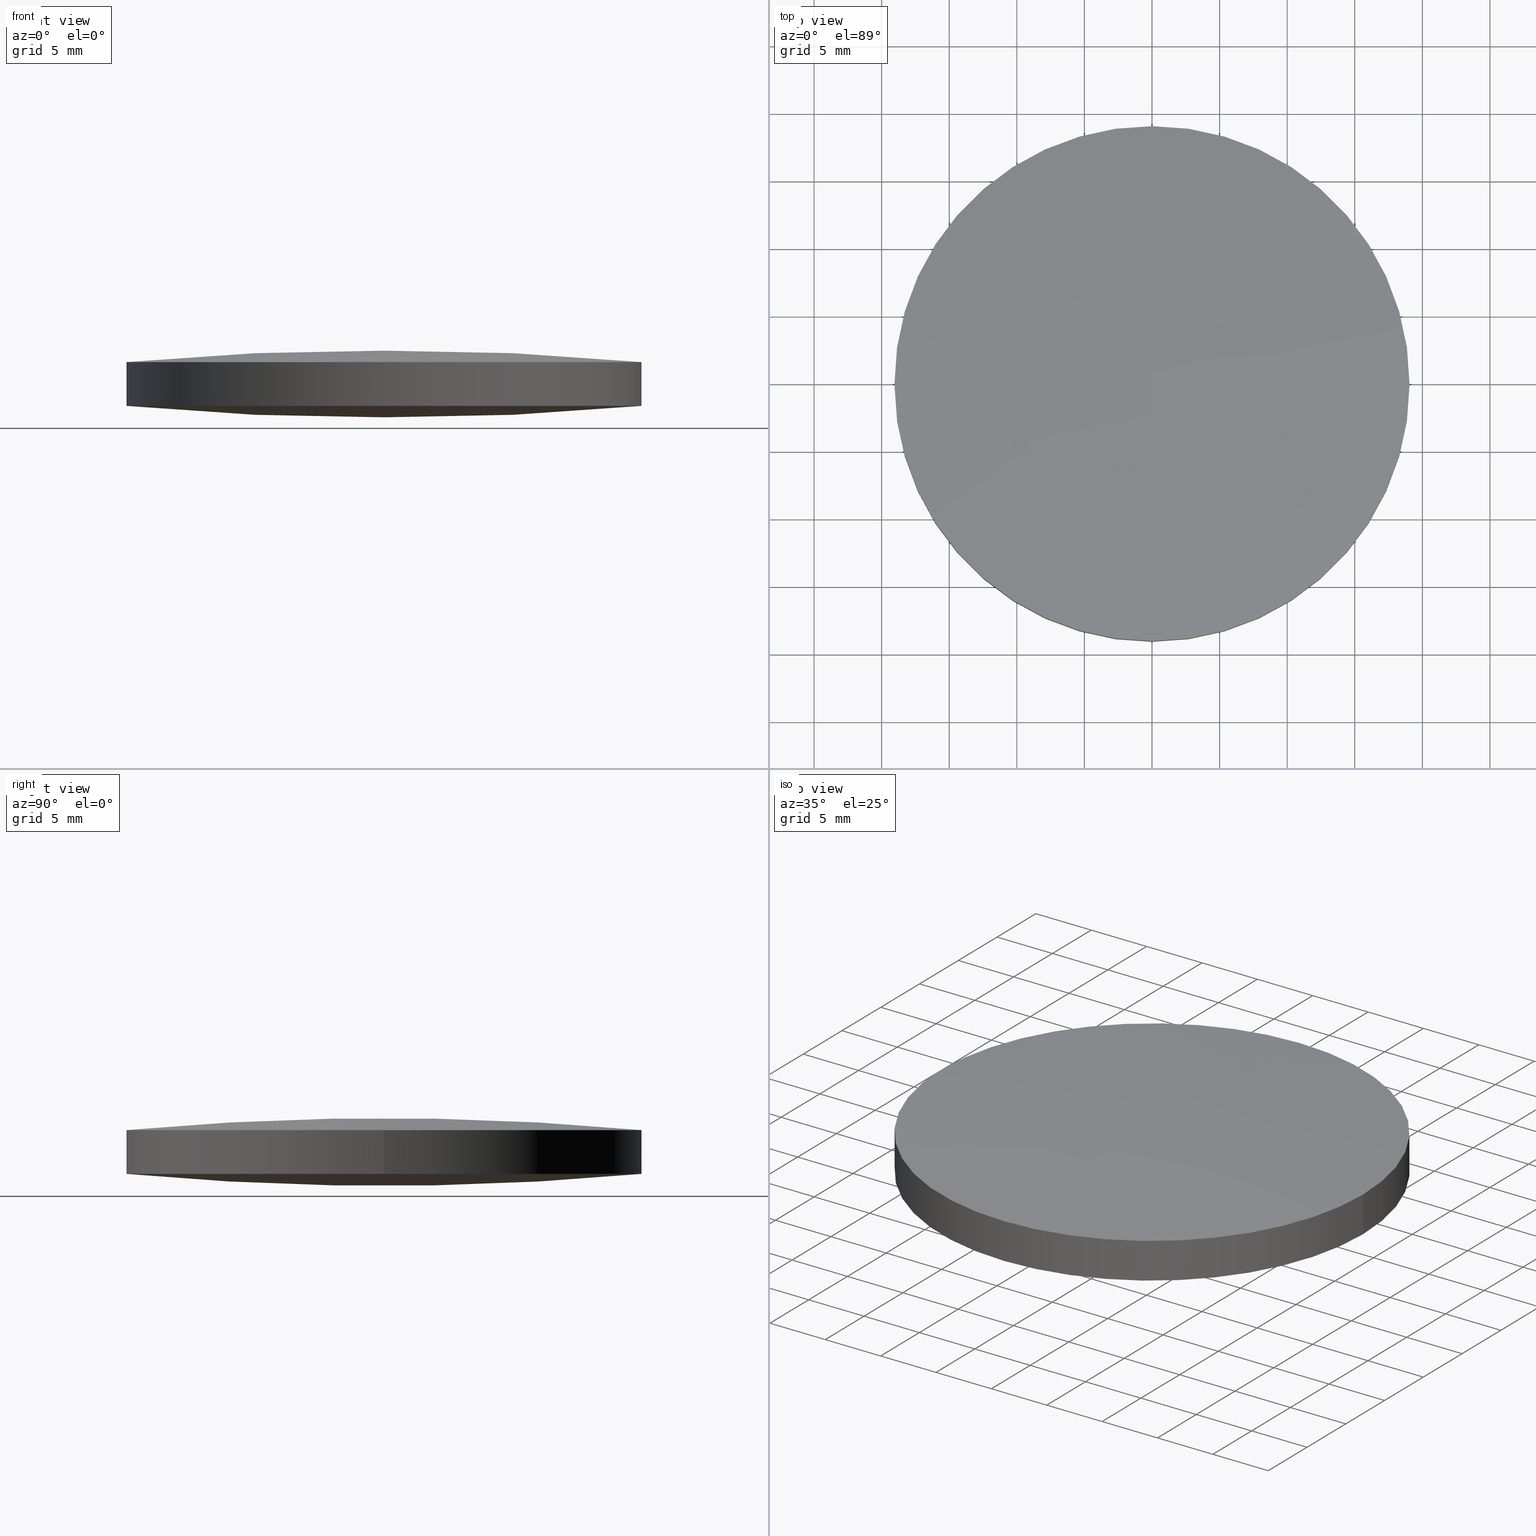
[diagram: canonical four-view strip — front | top / right | iso, engineering-drawing reading convention]
A machine part, canonical four-view strip (front | top / right | iso — engineering-drawing reading convention). The complete STEP part file that produces these views, byte-faithful:
ISO-10303-21;
HEADER;
FILE_DESCRIPTION (( 'STEP AP203' ),
    '1' );
FILE_NAME ('111-0418E BK7 bi-cx 38.1 F200.STEP',
    '2019-01-10T10:47:55',
    ( '' ),
    ( '' ),
    'SwSTEP 2.0',
    'SolidWorks 2017',
    '' );
FILE_SCHEMA (( 'CONFIG_CONTROL_DESIGN' ));
ENDSEC;

DATA;
#1 = APPROVAL_DATE_TIME ( #285, #61 ) ;
#2 = CARTESIAN_POINT ( 'NONE',  ( 19.08036082284170100, 19.27793817985587000, 3.211769511431705700 ) ) ;
#3 = EDGE_CURVE ( 'NONE', #249, #177, #100, .T. ) ;
#4 = APPLICATION_CONTEXT ( 'configuration controlled 3d designs of mechanical parts and assemblies' ) ;
#5 = APPLICATION_PROTOCOL_DEFINITION ( 'international standard', 'config_control_design', 1994, #4 ) ;
#6 = CARTESIAN_POINT ( 'NONE',  ( -12.73626367471861600, -19.27793817985586200, 1.197211413003954200 ) ) ;
#7 = ORIENTED_EDGE ( 'NONE', *, *, #163, .T. ) ;
#8 = PRODUCT_RELATED_PRODUCT_CATEGORY ( 'detail', '', ( #144 ) ) ;
#9 = DIRECTION ( 'NONE',  ( 1.000000000000000000, 0.0000000000000000000, 0.0000000000000000000 ) ) ;
#10 = CARTESIAN_POINT ( 'NONE',  ( 12.81073263667017400, 6.444724679720206200, -0.003779147387872393600 ) ) ;
#11 = PERSON_AND_ORGANIZATION ( #173, #134 ) ;
#12 = CARTESIAN_POINT ( 'NONE',  ( 1.422473250300982100E-013, 6.444724679720232000, -0.3013374258179613000 ) ) ;
#13 = CARTESIAN_POINT ( 'NONE',  ( -19.19192373488753800, -6.444724679720267500, 0.5906956180220642700 ) ) ;
#14 = FACE_OUTER_BOUND ( 'NONE', #15, .T. ) ;
#15 = EDGE_LOOP ( 'NONE', ( #51, #195, #123 ) ) ;
#16 = VERTEX_POINT ( 'NONE', #148 ) ;
#17 = EDGE_CURVE ( 'NONE', #219, #133, #161, .T. ) ;
#18 =( BOUNDED_SURFACE ( )  B_SPLINE_SURFACE ( 3, 3, ( 
 ( #174, #6, #205, #259 ),
 ( #13, #261, #287, #131 ),
 ( #207, #229, #184, #12 ),
 ( #159, #132, #155, #67 ) ),
 .UNSPECIFIED., .F., .F., .T. ) 
 B_SPLINE_SURFACE_WITH_KNOTS ( ( 4, 4 ),
 ( 4, 4 ),
 ( 0.0000000000000000000, 1.000000000000000000 ),
 ( 0.0000000000000000000, 1.000000000000000000 ),
 .UNSPECIFIED. ) 
 GEOMETRIC_REPRESENTATION_ITEM ( )  RATIONAL_B_SPLINE_SURFACE ( (
 ( 1.000000000000000000, 0.9992810467765541600, 0.9992810467765541600, 1.000000000000000000),
 ( 0.9970913751375676300, 0.9963745130793424400, 0.9963745130793424400, 0.9970913751375676300),
 ( 0.9970913751375676300, 0.9963745130793424400, 0.9963745130793424400, 0.9970913751375676300),
 ( 1.000000000000000000, 0.9992810467765541600, 0.9992810467765541600, 1.000000000000000000) ) ) 
 REPRESENTATION_ITEM ( '' )  SURFACE ( )  );
#19 = CYLINDRICAL_SURFACE ( 'NONE', #73, 19.05000000000000100 ) ;
#20 = FACE_OUTER_BOUND ( 'NONE', #46, .T. ) ;
#21 = DIRECTION ( 'NONE',  ( 5.827942386483759700E-018, 2.717192996813919900E-034, 1.000000000000000000 ) ) ;
#22 = CARTESIAN_POINT ( 'NONE',  ( -6.408822050789117600, -6.444724679720301300, 5.301337425817966000 ) ) ;
#23 = PERSON_AND_ORGANIZATION ( #173, #134 ) ;
#24 = FACE_OUTER_BOUND ( 'NONE', #257, .T. ) ;
#25 = ADVANCED_FACE ( 'NONE', ( #14 ), #118, .T. ) ;
#26 = DIRECTION ( 'NONE',  ( 1.000000000000000000, 0.0000000000000000000, -5.691349986800548400E-018 ) ) ;
#27 = CARTESIAN_POINT ( 'NONE',  ( -1.353084311261909500E-013, 19.27793817985587300, 4.098617155132239500 ) ) ;
#28 = CARTESIAN_POINT ( 'NONE',  ( -19.19192373488759900, 6.444724679720241800, 4.409304381977994700 ) ) ;
#29 = CARTESIAN_POINT ( 'NONE',  ( 1.991749316508425300E-013, -19.27793817985585900, 0.9013828448677652100 ) ) ;
#30 = CARTESIAN_POINT ( 'NONE',  ( 6.371567481593944000, 19.27793817985578800, 0.9013828448677687600 ) ) ;
#31 = DIRECTION ( 'NONE',  ( 1.000000000000000000, -8.881784197001252300E-016, -5.691349986800548400E-018 ) ) ;
#32 = SECURITY_CLASSIFICATION_LEVEL ( 'unclassified' ) ;
#33 = ORIENTED_EDGE ( 'NONE', *, *, #17, .F. ) ;
#34 = VERTEX_POINT ( 'NONE', #128 ) ;
#35 = DIRECTION ( 'NONE',  ( -5.827942386483759700E-018, -2.717192996813919900E-034, -1.000000000000000000 ) ) ;
#36 = CC_DESIGN_APPROVAL ( #61, ( #117 ) ) ;
#37 = CARTESIAN_POINT ( 'NONE',  ( -8.526512829121199700E-014, -5.684341886080800200E-014, -201.5999999999999900 ) ) ;
#38 = CARTESIAN_POINT ( 'NONE',  ( 1.884043759237314700E-013, 19.04999999999994700, 0.8801480167750022100 ) ) ;
#39 = ORIENTED_EDGE ( 'NONE', *, *, #215, .F. ) ;
#40 = CARTESIAN_POINT ( 'NONE',  ( 6.371567481593705100, -19.27793817985600100, 4.098617155132211900 ) ) ;
#41 = EDGE_CURVE ( 'NONE', #237, #16, #110, .T. ) ;
#42 = DATE_AND_TIME ( #72, #107 ) ;
#43 = CARTESIAN_POINT ( 'NONE',  ( -4.644055895359926400E-015, -8.881784197001250400E-016, 4.119851983224990000 ) ) ;
#44 = DESIGN_CONTEXT ( 'detailed design', #4, 'design' ) ;
#45 = APPROVAL_ROLE ( '' ) ;
#46 = EDGE_LOOP ( 'NONE', ( #80, #182, #271, #152, #262, #143 ) ) ;
#47 = CARTESIAN_POINT ( 'NONE',  ( 12.73626367471876700, 19.27793817985578800, 1.197211413003924200 ) ) ;
#48 = DATE_TIME_ROLE ( 'classification_date' ) ;
#49 = PERSON_AND_ORGANIZATION ( #173, #134 ) ;
#50 = CARTESIAN_POINT ( 'NONE',  ( -4.644055895359926400E-015, -8.881784197001250400E-016, 4.119851983224990000 ) ) ;
#51 = ORIENTED_EDGE ( 'NONE', *, *, #191, .T. ) ;
#52 = PERSON_AND_ORGANIZATION ( #173, #134 ) ;
#53 = FACE_OUTER_BOUND ( 'NONE', #241, .T. ) ;
#54 = CARTESIAN_POINT ( 'NONE',  ( 19.19192373488754900, 6.444724679720213300, 4.409304381977981400 ) ) ;
#55 = CARTESIAN_POINT ( 'NONE',  ( -12.73626367471877100, 19.27793817985588000, 3.802788586996080700 ) ) ;
#56 = CARTESIAN_POINT ( 'NONE',  ( 19.19192373488754200, -6.444724679720344800, 4.409304381977953800 ) ) ;
#57 = ORIENTED_EDGE ( 'NONE', *, *, #41, .T. ) ;
#58 = CARTESIAN_POINT ( 'NONE',  ( 6.408822050788878700, 6.444724679720217800, 5.301337425818004200 ) ) ;
#59 = ADVANCED_FACE ( 'NONE', ( #216 ), #18, .T. ) ;
#60 = DIRECTION ( 'NONE',  ( -5.827942386483759700E-018, -2.717192996813919900E-034, -1.000000000000000000 ) ) ;
#61 = APPROVAL ( #250, 'UNSPECIFIED' ) ;
#62 = PERSON_AND_ORGANIZATION_ROLE ( 'creator' ) ;
#63 = PERSON_AND_ORGANIZATION_ROLE ( 'creator' ) ;
#64 = CARTESIAN_POINT ( 'NONE',  ( 19.08036082284174000, 19.27793817985578800, 1.788230488568283800 ) ) ;
#65 = APPROVAL_PERSON_ORGANIZATION ( #194, #61, #178 ) ;
#66 = CC_DESIGN_PERSON_AND_ORGANIZATION_ASSIGNMENT ( #52, #62, ( #117 ) ) ;
#67 = CARTESIAN_POINT ( 'NONE',  ( 1.353084311261909500E-013, 19.27793817985582700, 0.9013828448677929700 ) ) ;
#68 = EDGE_CURVE ( 'NONE', #133, #237, #146, .T. ) ;
#69 = ORIENTED_EDGE ( 'NONE', *, *, #41, .F. ) ;
#70 = UNCERTAINTY_MEASURE_WITH_UNIT (LENGTH_MEASURE( 1.000000000000000100E-005 ), #85, 'distance_accuracy_value', 'NONE');
#71 = ADVANCED_BREP_SHAPE_REPRESENTATION ( '111-0418E BK7 bi-cx 38.1 F200', ( #176, #164 ), #179 ) ;
#72 = CALENDAR_DATE ( 2019, 10, 1 ) ;
#73 = AXIS2_PLACEMENT_3D ( 'NONE', #90, #116, #92 ) ;
#74 = CARTESIAN_POINT ( 'NONE',  ( -19.05000000000000400, 1.444773732675583000E-015, 0.8801480167750090900 ) ) ;
#75 = DIRECTION ( 'NONE',  ( -5.827942386483759700E-018, -2.717192996813919900E-034, -1.000000000000000000 ) ) ;
#76 = ORIENTED_EDGE ( 'NONE', *, *, #91, .T. ) ;
#77 = CARTESIAN_POINT ( 'NONE',  ( 12.81073263667003000, -6.444724679720340400, 5.003779147387859900 ) ) ;
#78 = CARTESIAN_POINT ( 'NONE',  ( 6.371567481593719300, 19.27793817985587000, 4.098617155132241200 ) ) ;
#79 = CALENDAR_DATE ( 2019, 10, 1 ) ;
#80 = ORIENTED_EDGE ( 'NONE', *, *, #91, .F. ) ;
#81 = EDGE_CURVE ( 'NONE', #16, #219, #235, .T. ) ;
#82 = APPROVAL_STATUS ( 'not_yet_approved' ) ;
#83 = CARTESIAN_POINT ( 'NONE',  ( 6.371567481593955600, -19.27793817985585500, 0.9013828448677687600 ) ) ;
#84 = VECTOR ( 'NONE', #264, 1000.000000000000000 ) ;
#85 =( LENGTH_UNIT ( ) NAMED_UNIT ( * ) SI_UNIT ( .MILLI., .METRE. ) );
#86 = CARTESIAN_POINT ( 'NONE',  ( -4.644055895359926400E-015, -8.881784197001250400E-016, 4.119851983224990000 ) ) ;
#87 = CC_DESIGN_DATE_AND_TIME_ASSIGNMENT ( #42, #48, ( #252 ) ) ;
#88 = CIRCLE ( 'NONE', #204, 206.5999999999999900 ) ;
#89 = ORIENTED_EDGE ( 'NONE', *, *, #191, .F. ) ;
#90 = CARTESIAN_POINT ( 'NONE',  ( -4.662936703425659800E-015, -8.881784197001250400E-016, 0.8801480167750089800 ) ) ;
#91 = EDGE_CURVE ( 'NONE', #103, #249, #289, .T. ) ;
#92 = DIRECTION ( 'NONE',  ( 1.000000000000000000, 0.0000000000000000000, -5.691349986800548400E-018 ) ) ;
#93 = DIRECTION ( 'NONE',  ( 1.000000000000000000, 0.0000000000000000000, -5.691349986800548400E-018 ) ) ;
#94 = VECTOR ( 'NONE', #115, 1000.000000000000000 ) ;
#95 = ORIENTED_EDGE ( 'NONE', *, *, #170, .F. ) ;
#96 = CARTESIAN_POINT ( 'NONE',  ( -1.991220114042385400E-013, -19.05000000000009300, 4.119851983224985600 ) ) ;
#97 = CARTESIAN_POINT ( 'NONE',  ( -12.73626367471878000, -19.27793817985594100, 3.802788586996052700 ) ) ;
#98 = LOCAL_TIME ( 12, 47, 55.00000000000000000, #209 ) ;
#99 = PERSON_AND_ORGANIZATION ( #173, #134 ) ;
#100 = CIRCLE ( 'NONE', #109, 19.05000000000000100 ) ;
#101 = DIRECTION ( 'NONE',  ( 1.000000000000000000, 0.0000000000000000000, 0.0000000000000000000 ) ) ;
#102 = CALENDAR_DATE ( 2019, 10, 1 ) ;
#103 = VERTEX_POINT ( 'NONE', #106 ) ;
#104 = DATE_TIME_ROLE ( 'creation_date' ) ;
#105 = CARTESIAN_POINT ( 'NONE',  ( 6.408822050789112300, 6.444724679720204500, -0.3013374258179815100 ) ) ;
#106 = CARTESIAN_POINT ( 'NONE',  ( -19.05000000000000400, 1.444773732675583000E-015, 0.8801480167750092000 ) ) ;
#107 = LOCAL_TIME ( 12, 47, 55.00000000000000000, #226 ) ;
#108 = PERSON_AND_ORGANIZATION ( #173, #134 ) ;
#109 = AXIS2_PLACEMENT_3D ( 'NONE', #202, #276, #31 ) ;
#110 = CIRCLE ( 'NONE', #135, 19.05000000000000100 ) ;
#111 = ORIENTED_EDGE ( 'NONE', *, *, #139, .T. ) ;
#112 = COORDINATED_UNIVERSAL_TIME_OFFSET ( 2, 0, .AHEAD. ) ;
#113 = DIRECTION ( 'NONE',  ( -1.000000000000000000, 2.813027685172509800E-016, -5.274068804094810300E-016 ) ) ;
#114 = EDGE_CURVE ( 'NONE', #34, #249, #88, .T. ) ;
#115 = DIRECTION ( 'NONE',  ( 5.827942386483759700E-018, 2.717192996813919900E-034, 1.000000000000000000 ) ) ;
#116 = DIRECTION ( 'NONE',  ( 5.827942386483759700E-018, 2.717192996813919900E-034, 1.000000000000000000 ) ) ;
#117 = PRODUCT_DEFINITION ( 'UNKNOWN', '', #208, #44 ) ;
#118 =( BOUNDED_SURFACE ( )  B_SPLINE_SURFACE ( 3, 3, ( 
 ( #29, #83, #251, #280 ),
 ( #199, #255, #253, #130 ),
 ( #203, #105, #10, #153 ),
 ( #278, #30, #47, #64 ) ),
 .UNSPECIFIED., .F., .F., .T. ) 
 B_SPLINE_SURFACE_WITH_KNOTS ( ( 4, 4 ),
 ( 4, 4 ),
 ( 0.0000000000000000000, 1.000000000000000000 ),
 ( 0.0000000000000000000, 1.000000000000000000 ),
 .UNSPECIFIED. ) 
 GEOMETRIC_REPRESENTATION_ITEM ( )  RATIONAL_B_SPLINE_SURFACE ( (
 ( 1.000000000000000000, 0.9992810467765543800, 0.9992810467765543800, 1.000000000000000000),
 ( 0.9970913751375676300, 0.9963745130793426600, 0.9963745130793426600, 0.9970913751375676300),
 ( 0.9970913751375676300, 0.9963745130793426600, 0.9963745130793426600, 0.9970913751375676300),
 ( 1.000000000000000000, 0.9992810467765543800, 0.9992810467765543800, 1.000000000000000000) ) ) 
 REPRESENTATION_ITEM ( '' )  SURFACE ( )  );
#119 = CARTESIAN_POINT ( 'NONE',  ( -1.884043759237312400E-013, 19.05000000000004000, 4.119851983224985600 ) ) ;
#120 = CARTESIAN_POINT ( 'NONE',  ( -1.883290568882465600E-013, 19.27793817985587700, 4.098617155132239500 ) ) ;
#121 = CARTESIAN_POINT ( 'NONE',  ( -19.08036082284174700, 19.27793817985588000, 3.211769511431720400 ) ) ;
#122 = CIRCLE ( 'NONE', #158, 19.05000000000000100 ) ;
#123 = ORIENTED_EDGE ( 'NONE', *, *, #3, .T. ) ;
#124 = CARTESIAN_POINT ( 'NONE',  ( 19.08036082284168700, -19.27793817985600100, 3.211769511431677800 ) ) ;
#125 = CARTESIAN_POINT ( 'NONE',  ( -12.81073263667017800, -6.444724679720299500, 5.003779147387857200 ) ) ;
#126 = SHAPE_DEFINITION_REPRESENTATION ( #214, #71 ) ;
#127 =( NAMED_UNIT ( * ) PLANE_ANGLE_UNIT ( ) SI_UNIT ( $, .RADIAN. ) );
#128 = CARTESIAN_POINT ( 'NONE',  ( 1.991220114042387200E-013, -19.05000000000000400, 0.8801480167750022100 ) ) ;
#129 =( NAMED_UNIT ( * ) SI_UNIT ( $, .STERADIAN. ) SOLID_ANGLE_UNIT ( ) );
#130 = CARTESIAN_POINT ( 'NONE',  ( 19.19192373488759500, -6.444724679720271100, 0.5906956180220230800 ) ) ;
#131 = CARTESIAN_POINT ( 'NONE',  ( 1.491862189340054100E-013, -6.444724679720261300, -0.3013374258179558100 ) ) ;
#132 = CARTESIAN_POINT ( 'NONE',  ( -12.73626367471863000, 19.27793817985582700, 1.197211413003954000 ) ) ;
#133 = VERTEX_POINT ( 'NONE', #275 ) ;
#134 = ORGANIZATION ( 'UNSPECIFIED', 'UNSPECIFIED', '' ) ;
#135 = AXIS2_PLACEMENT_3D ( 'NONE', #43, #150, #233 ) ;
#136 = CARTESIAN_POINT ( 'NONE',  ( 19.04999999999999700, -8.881784197001250400E-016, 0.8801480167750088700 ) ) ;
#137 = APPROVAL_PERSON_ORGANIZATION ( #99, #283, #277 ) ;
#138 = EDGE_LOOP ( 'NONE', ( #246, #188, #76 ) ) ;
#139 = EDGE_CURVE ( 'NONE', #177, #133, #141, .T. ) ;
#140 = DIRECTION ( 'NONE',  ( 1.000000000000000000, 0.0000000000000000000, -5.691349986800548400E-018 ) ) ;
#141 = LINE ( 'NONE', #136, #94 ) ;
#142 = CARTESIAN_POINT ( 'NONE',  ( 12.73626367471862900, 19.27793817985587300, 3.802788586996078000 ) ) ;
#143 = ORIENTED_EDGE ( 'NONE', *, *, #3, .F. ) ;
#144 = PRODUCT ( '111-0418E BK7 bi-cx 38.1 F200', '111-0418E BK7 bi-cx 38.1 F200', '', ( #225 ) ) ;
#145 = CARTESIAN_POINT ( 'NONE',  ( 6.408822050788870700, -6.444724679720337700, 5.301337425817975700 ) ) ;
#146 = CIRCLE ( 'NONE', #187, 19.05000000000000100 ) ;
#147 = CARTESIAN_POINT ( 'NONE',  ( -12.81073263667017800, 6.444724679720237300, 5.003779147387888300 ) ) ;
#148 = CARTESIAN_POINT ( 'NONE',  ( -19.05000000000000400, 1.444773732675583000E-015, 4.119851983224990000 ) ) ;
#149 = PERSON_AND_ORGANIZATION_ROLE ( 'classification_officer' ) ;
#150 = DIRECTION ( 'NONE',  ( -5.827942386483759700E-018, -2.717192996813919900E-034, -1.000000000000000000 ) ) ;
#151 = CIRCLE ( 'NONE', #221, 206.5999999999999900 ) ;
#152 = ORIENTED_EDGE ( 'NONE', *, *, #17, .T. ) ;
#153 = CARTESIAN_POINT ( 'NONE',  ( 19.19192373488759200, 6.444724679720208900, 0.5906956180220207500 ) ) ;
#154 = DIRECTION ( 'NONE',  ( 0.0000000000000000000, 0.0000000000000000000, 1.000000000000000000 ) ) ;
#155 = CARTESIAN_POINT ( 'NONE',  ( -6.371567481593718400, 19.27793817985582300, 0.9013828448677914100 ) ) ;
#156 = AXIS2_PLACEMENT_3D ( 'NONE', #248, #60, #101 ) ;
#157 = DATE_AND_TIME ( #102, #224 ) ;
#158 = AXIS2_PLACEMENT_3D ( 'NONE', #223, #197, #26 ) ;
#159 = CARTESIAN_POINT ( 'NONE',  ( -19.08036082284170100, 19.27793817985582300, 1.788230488568326400 ) ) ;
#160 = LOCAL_TIME ( 12, 47, 55.00000000000000000, #231 ) ;
#161 = CIRCLE ( 'NONE', #156, 19.05000000000000100 ) ;
#162 = DIRECTION ( 'NONE',  ( -2.813027685172511800E-016, -1.000000000000000000, 2.686890185443263700E-016 ) ) ;
#163 = EDGE_CURVE ( 'NONE', #237, #219, #151, .T. ) ;
#164 = AXIS2_PLACEMENT_3D ( 'NONE', #254, #154, #9 ) ;
#165 = PERSON_AND_ORGANIZATION ( #173, #134 ) ;
#166 = CLOSED_SHELL ( 'NONE', ( #25, #294, #196, #59, #171, #247 ) ) ;
#167 = DIRECTION ( 'NONE',  ( 1.000000000000000000, 0.0000000000000000000, -5.691349986800548400E-018 ) ) ;
#168 = CARTESIAN_POINT ( 'NONE',  ( -19.19192373488759900, -6.444724679720299500, 4.409304381977964500 ) ) ;
#169 = CARTESIAN_POINT ( 'NONE',  ( -19.08036082284175400, -19.27793817985594100, 3.211769511431692900 ) ) ;
#170 = EDGE_CURVE ( 'NONE', #103, #16, #279, .T. ) ;
#171 = ADVANCED_FACE ( 'NONE', ( #240 ), #19, .T. ) ;
#172 = CARTESIAN_POINT ( 'NONE',  ( -1.491862189340054100E-013, -19.27793817985599700, 4.098617155132211000 ) ) ;
#173 = PERSON ( 'UNSPECIFIED', 'UNSPECIFIED', 'UNSPECIFIED', ('UNSPECIFIED'), ('UNSPECIFIED'), ('UNSPECIFIED') ) ;
#174 = CARTESIAN_POINT ( 'NONE',  ( -19.08036082284168700, -19.27793817985586600, 1.788230488568326400 ) ) ;
#175 = CYLINDRICAL_SURFACE ( 'NONE', #239, 19.05000000000000100 ) ;
#176 = MANIFOLD_SOLID_BREP ( 'Imported1', #166 ) ;
#177 = VERTEX_POINT ( 'NONE', #266 ) ;
#178 = APPROVAL_ROLE ( '' ) ;
#179 =( GEOMETRIC_REPRESENTATION_CONTEXT ( 3 ) GLOBAL_UNCERTAINTY_ASSIGNED_CONTEXT ( ( #70 ) ) GLOBAL_UNIT_ASSIGNED_CONTEXT ( ( #85, #127, #129 ) ) REPRESENTATION_CONTEXT ( 'NONE', 'WORKASPACE' ) );
#180 = APPLICATION_CONTEXT ( 'configuration controlled 3d designs of mechanical parts and assemblies' ) ;
#181 = DATE_AND_TIME ( #79, #160 ) ;
#182 = ORIENTED_EDGE ( 'NONE', *, *, #170, .T. ) ;
#183 = CC_DESIGN_APPROVAL ( #283, ( #208 ) ) ;
#184 = CARTESIAN_POINT ( 'NONE',  ( -6.408822050788873300, 6.444724679720230200, -0.3013374258179630800 ) ) ;
#185 = LOCAL_TIME ( 12, 47, 55.00000000000000000, #206 ) ;
#186 = CIRCLE ( 'NONE', #238, 19.05000000000000100 ) ;
#187 = AXIS2_PLACEMENT_3D ( 'NONE', #50, #35, #189 ) ;
#188 = ORIENTED_EDGE ( 'NONE', *, *, #215, .T. ) ;
#189 = DIRECTION ( 'NONE',  ( 1.000000000000000000, 0.0000000000000000000, 0.0000000000000000000 ) ) ;
#190 = CARTESIAN_POINT ( 'NONE',  ( -4.662936703425659800E-015, -8.881784197001250400E-016, 0.8801480167750090900 ) ) ;
#191 = EDGE_CURVE ( 'NONE', #177, #34, #186, .T. ) ;
#192 = DIRECTION ( 'NONE',  ( 1.000000000000000000, 2.813027685172509800E-016, 5.274068804094820100E-016 ) ) ;
#193 = CARTESIAN_POINT ( 'NONE',  ( -6.408822050789115800, 6.444724679720235500, 5.301337425817996200 ) ) ;
#194 = PERSON_AND_ORGANIZATION ( #173, #134 ) ;
#195 = ORIENTED_EDGE ( 'NONE', *, *, #114, .T. ) ;
#196 = ADVANCED_FACE ( 'NONE', ( #20 ), #175, .T. ) ;
#197 = DIRECTION ( 'NONE',  ( -5.827942386483759700E-018, -2.717192996813919900E-034, -1.000000000000000000 ) ) ;
#198 = PERSON_AND_ORGANIZATION_ROLE ( 'design_supplier' ) ;
#199 = CARTESIAN_POINT ( 'NONE',  ( 1.961992361102490800E-013, -6.444724679720276400, -0.3013374258179825600 ) ) ;
#200 = EDGE_LOOP ( 'NONE', ( #95, #39, #89, #111, #265, #57 ) ) ;
#201 = CC_DESIGN_PERSON_AND_ORGANIZATION_ASSIGNMENT ( #11, #63, ( #208 ) ) ;
#202 = CARTESIAN_POINT ( 'NONE',  ( -4.662936703425659800E-015, -8.881784197001250400E-016, 0.8801480167750090900 ) ) ;
#203 = CARTESIAN_POINT ( 'NONE',  ( 1.925733983207755500E-013, 6.444724679720203600, -0.3013374258179849500 ) ) ;
#204 = AXIS2_PLACEMENT_3D ( 'NONE', #217, #192, #212 ) ;
#205 = CARTESIAN_POINT ( 'NONE',  ( -6.371567481593705100, -19.27793817985586200, 0.9013828448677917400 ) ) ;
#206 = COORDINATED_UNIVERSAL_TIME_OFFSET ( 2, 0, .AHEAD. ) ;
#207 = CARTESIAN_POINT ( 'NONE',  ( -19.19192373488754600, 6.444724679720225800, 0.5906956180220592800 ) ) ;
#208 = PRODUCT_DEFINITION_FORMATION_WITH_SPECIFIED_SOURCE ( 'ANY', '', #144, .NOT_KNOWN. ) ;
#209 = COORDINATED_UNIVERSAL_TIME_OFFSET ( 2, 0, .AHEAD. ) ;
#210 = ORIENTED_EDGE ( 'NONE', *, *, #68, .F. ) ;
#211 = CC_DESIGN_PERSON_AND_ORGANIZATION_ASSIGNMENT ( #23, #198, ( #208 ) ) ;
#212 = DIRECTION ( 'NONE',  ( 2.813027685172511800E-016, -1.000000000000000000, -2.686890185443263700E-016 ) ) ;
#213 = DATE_AND_TIME ( #291, #98 ) ;
#214 = PRODUCT_DEFINITION_SHAPE ( 'NONE', 'NONE',  #117 ) ;
#215 = EDGE_CURVE ( 'NONE', #34, #103, #122, .T. ) ;
#216 = FACE_OUTER_BOUND ( 'NONE', #138, .T. ) ;
#217 = CARTESIAN_POINT ( 'NONE',  ( 8.526512829121199700E-014, -5.684341886080800200E-014, 206.5999999999999900 ) ) ;
#218 = CARTESIAN_POINT ( 'NONE',  ( -1.961992361102488300E-013, -6.444724679720304800, 5.301337425817969500 ) ) ;
#219 = VERTEX_POINT ( 'NONE', #119 ) ;
#220 = CARTESIAN_POINT ( 'NONE',  ( -1.457167719820518000E-013, -6.444724679720338600, 5.301337425817973100 ) ) ;
#221 = AXIS2_PLACEMENT_3D ( 'NONE', #37, #113, #162 ) ;
#222 = CARTESIAN_POINT ( 'NONE',  ( -1.387778780781445700E-013, 6.444724679720219600, 5.301337425818002400 ) ) ;
#223 = CARTESIAN_POINT ( 'NONE',  ( -4.662936703425659800E-015, -8.881784197001250400E-016, 0.8801480167750090900 ) ) ;
#224 = LOCAL_TIME ( 12, 47, 55.00000000000000000, #112 ) ;
#225 = MECHANICAL_CONTEXT ( 'NONE', #180, 'mechanical' ) ;
#226 = COORDINATED_UNIVERSAL_TIME_OFFSET ( 2, 0, .AHEAD. ) ;
#227 = ORIENTED_EDGE ( 'NONE', *, *, #81, .F. ) ;
#228 = PERSON_AND_ORGANIZATION_ROLE ( 'design_owner' ) ;
#229 = CARTESIAN_POINT ( 'NONE',  ( -12.81073263667003400, 6.444724679720227600, -0.003779147387846806400 ) ) ;
#230 = CC_DESIGN_DATE_AND_TIME_ASSIGNMENT ( #181, #104, ( #117 ) ) ;
#231 = COORDINATED_UNIVERSAL_TIME_OFFSET ( 2, 0, .AHEAD. ) ;
#232 = AXIS2_PLACEMENT_3D ( 'NONE', #286, #290, #140 ) ;
#233 = DIRECTION ( 'NONE',  ( 1.000000000000000000, 0.0000000000000000000, 0.0000000000000000000 ) ) ;
#234 = APPROVAL_DATE_TIME ( #213, #283 ) ;
#235 = CIRCLE ( 'NONE', #258, 19.05000000000000100 ) ;
#236 = CC_DESIGN_PERSON_AND_ORGANIZATION_ASSIGNMENT ( #49, #149, ( #252 ) ) ;
#237 = VERTEX_POINT ( 'NONE', #96 ) ;
#238 = AXIS2_PLACEMENT_3D ( 'NONE', #190, #75, #93 ) ;
#239 = AXIS2_PLACEMENT_3D ( 'NONE', #269, #21, #167 ) ;
#240 = FACE_OUTER_BOUND ( 'NONE', #200, .T. ) ;
#241 = EDGE_LOOP ( 'NONE', ( #69, #7, #227 ) ) ;
#242 =( BOUNDED_SURFACE ( )  B_SPLINE_SURFACE ( 3, 3, ( 
 ( #124, #295, #40, #172 ),
 ( #56, #77, #145, #220 ),
 ( #54, #270, #58, #222 ),
 ( #2, #142, #78, #27 ) ),
 .UNSPECIFIED., .F., .F., .F. ) 
 B_SPLINE_SURFACE_WITH_KNOTS ( ( 4, 4 ),
 ( 4, 4 ),
 ( 0.0000000000000000000, 1.000000000000000000 ),
 ( 0.0000000000000000000, 1.000000000000000000 ),
 .UNSPECIFIED. ) 
 GEOMETRIC_REPRESENTATION_ITEM ( )  RATIONAL_B_SPLINE_SURFACE ( (
 ( 1.000000000000000000, 0.9992810467765541600, 0.9992810467765541600, 1.000000000000000000),
 ( 0.9970913751375676300, 0.9963745130793424400, 0.9963745130793424400, 0.9970913751375676300),
 ( 0.9970913751375676300, 0.9963745130793424400, 0.9963745130793424400, 0.9970913751375676300),
 ( 1.000000000000000000, 0.9992810467765541600, 0.9992810467765541600, 1.000000000000000000) ) ) 
 REPRESENTATION_ITEM ( '' )  SURFACE ( )  );
#243 = CARTESIAN_POINT ( 'NONE',  ( -6.371567481593946700, 19.27793817985588000, 4.098617155132235000 ) ) ;
#244 = CARTESIAN_POINT ( 'NONE',  ( -1.991749316508423100E-013, -19.27793817985594400, 4.098617155132211900 ) ) ;
#245 = CALENDAR_DATE ( 2019, 10, 1 ) ;
#246 = ORIENTED_EDGE ( 'NONE', *, *, #114, .F. ) ;
#247 = ADVANCED_FACE ( 'NONE', ( #24 ), #242, .T. ) ;
#248 = CARTESIAN_POINT ( 'NONE',  ( -4.644055895359926400E-015, -8.881784197001250400E-016, 4.119851983224990000 ) ) ;
#249 = VERTEX_POINT ( 'NONE', #38 ) ;
#250 = APPROVAL_STATUS ( 'not_yet_approved' ) ;
#251 = CARTESIAN_POINT ( 'NONE',  ( 12.73626367471877400, -19.27793817985585500, 1.197211413003924400 ) ) ;
#252 = SECURITY_CLASSIFICATION ( '', '', #32 ) ;
#253 = CARTESIAN_POINT ( 'NONE',  ( 12.81073263667017800, -6.444724679720271100, -0.003779147387870116300 ) ) ;
#254 = CARTESIAN_POINT ( 'NONE',  ( 0.0000000000000000000, 0.0000000000000000000, 0.0000000000000000000 ) ) ;
#255 = CARTESIAN_POINT ( 'NONE',  ( 6.408822050789115800, -6.444724679720272000, -0.3013374258179791200 ) ) ;
#256 = DIRECTION ( 'NONE',  ( 1.000000000000000000, 0.0000000000000000000, 0.0000000000000000000 ) ) ;
#257 = EDGE_LOOP ( 'NONE', ( #292, #210, #33 ) ) ;
#258 = AXIS2_PLACEMENT_3D ( 'NONE', #86, #282, #256 ) ;
#259 = CARTESIAN_POINT ( 'NONE',  ( 1.491862189340054100E-013, -19.27793817985586200, 0.9013828448677934100 ) ) ;
#260 = CC_DESIGN_PERSON_AND_ORGANIZATION_ASSIGNMENT ( #108, #228, ( #144 ) ) ;
#261 = CARTESIAN_POINT ( 'NONE',  ( -12.81073263667002700, -6.444724679720265700, -0.003779147387841493400 ) ) ;
#262 = ORIENTED_EDGE ( 'NONE', *, *, #139, .F. ) ;
#263 = APPROVAL_PERSON_ORGANIZATION ( #165, #267, #45 ) ;
#264 = DIRECTION ( 'NONE',  ( 5.827942386483759700E-018, 2.717192996813919900E-034, 1.000000000000000000 ) ) ;
#265 = ORIENTED_EDGE ( 'NONE', *, *, #68, .T. ) ;
#266 = CARTESIAN_POINT ( 'NONE',  ( 19.04999999999999700, -8.881784197001250400E-016, 0.8801480167750089800 ) ) ;
#267 = APPROVAL ( #281, 'UNSPECIFIED' ) ;
#268 =( BOUNDED_SURFACE ( )  B_SPLINE_SURFACE ( 3, 3, ( 
 ( #244, #293, #97, #169 ),
 ( #218, #22, #125, #168 ),
 ( #272, #193, #147, #28 ),
 ( #120, #243, #55, #121 ) ),
 .UNSPECIFIED., .F., .F., .F. ) 
 B_SPLINE_SURFACE_WITH_KNOTS ( ( 4, 4 ),
 ( 4, 4 ),
 ( 0.0000000000000000000, 1.000000000000000000 ),
 ( 0.0000000000000000000, 1.000000000000000000 ),
 .UNSPECIFIED. ) 
 GEOMETRIC_REPRESENTATION_ITEM ( )  RATIONAL_B_SPLINE_SURFACE ( (
 ( 1.000000000000000000, 0.9992810467765543800, 0.9992810467765543800, 1.000000000000000000),
 ( 0.9970913751375676300, 0.9963745130793426600, 0.9963745130793426600, 0.9970913751375676300),
 ( 0.9970913751375676300, 0.9963745130793426600, 0.9963745130793426600, 0.9970913751375676300),
 ( 1.000000000000000000, 0.9992810467765543800, 0.9992810467765543800, 1.000000000000000000) ) ) 
 REPRESENTATION_ITEM ( '' )  SURFACE ( )  );
#269 = CARTESIAN_POINT ( 'NONE',  ( -4.662936703425659800E-015, -8.881784197001250400E-016, 0.8801480167750089800 ) ) ;
#270 = CARTESIAN_POINT ( 'NONE',  ( 12.81073263667003700, 6.444724679720215100, 5.003779147387887400 ) ) ;
#271 = ORIENTED_EDGE ( 'NONE', *, *, #81, .T. ) ;
#272 = CARTESIAN_POINT ( 'NONE',  ( -1.925733983207752900E-013, 6.444724679720236400, 5.301337425818000600 ) ) ;
#273 = CC_DESIGN_APPROVAL ( #267, ( #252 ) ) ;
#274 = APPLICATION_PROTOCOL_DEFINITION ( 'international standard', 'config_control_design', 1994, #180 ) ;
#275 = CARTESIAN_POINT ( 'NONE',  ( 19.04999999999999700, -8.881784197001250400E-016, 4.119851983224990000 ) ) ;
#276 = DIRECTION ( 'NONE',  ( -5.827942386483759700E-018, -2.717192996813919900E-034, -1.000000000000000000 ) ) ;
#277 = APPROVAL_ROLE ( '' ) ;
#278 = CARTESIAN_POINT ( 'NONE',  ( 1.883290568882468100E-013, 19.27793817985578400, 0.9013828448677652100 ) ) ;
#279 = LINE ( 'NONE', #74, #84 ) ;
#280 = CARTESIAN_POINT ( 'NONE',  ( 19.08036082284174700, -19.27793817985585500, 1.788230488568283800 ) ) ;
#281 = APPROVAL_STATUS ( 'not_yet_approved' ) ;
#282 = DIRECTION ( 'NONE',  ( -5.827942386483759700E-018, -2.717192996813919900E-034, -1.000000000000000000 ) ) ;
#283 = APPROVAL ( #82, 'UNSPECIFIED' ) ;
#284 = APPROVAL_DATE_TIME ( #157, #267 ) ;
#285 = DATE_AND_TIME ( #245, #185 ) ;
#286 = CARTESIAN_POINT ( 'NONE',  ( -4.662936703425659800E-015, -8.881784197001250400E-016, 0.8801480167750090900 ) ) ;
#287 = CARTESIAN_POINT ( 'NONE',  ( -6.408822050788866200, -6.444724679720263100, -0.3013374258179575800 ) ) ;
#288 = CC_DESIGN_SECURITY_CLASSIFICATION ( #252, ( #208 ) ) ;
#289 = CIRCLE ( 'NONE', #232, 19.05000000000000100 ) ;
#290 = DIRECTION ( 'NONE',  ( -5.827942386483759700E-018, -2.717192996813919900E-034, -1.000000000000000000 ) ) ;
#291 = CALENDAR_DATE ( 2019, 10, 1 ) ;
#292 = ORIENTED_EDGE ( 'NONE', *, *, #163, .F. ) ;
#293 = CARTESIAN_POINT ( 'NONE',  ( -6.371567481593957400, -19.27793817985594100, 4.098617155132209300 ) ) ;
#294 = ADVANCED_FACE ( 'NONE', ( #53 ), #268, .T. ) ;
#295 = CARTESIAN_POINT ( 'NONE',  ( 12.73626367471861600, -19.27793817985599700, 3.802788586996050500 ) ) ;
ENDSEC;
END-ISO-10303-21;
